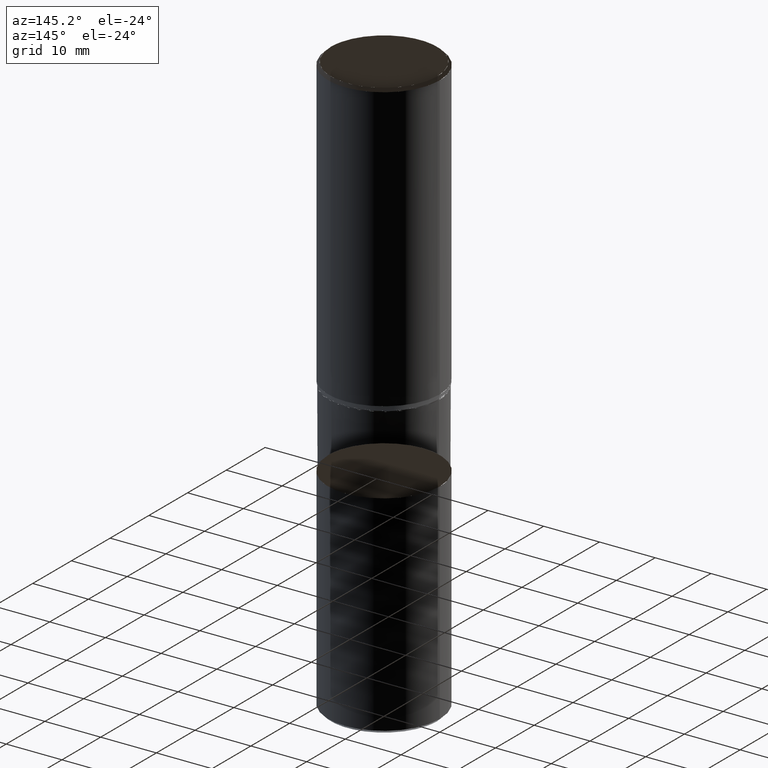
[diagram: clean part render]
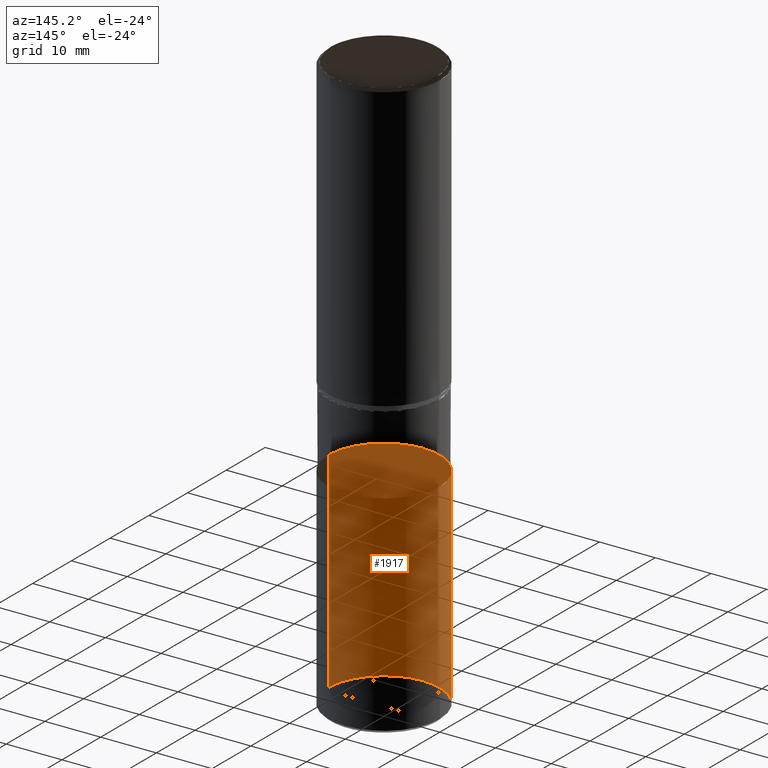
[diagram: same view with one face highlighted and labeled with its STEP entity id]
A machine part, auxiliary view. The second image highlights one B-rep face of the part: STEP entity #1917.
In plain terms, the highlighted face is a freeform B-spline surface patch.
Its self-contained STEP definition (entity closure, byte-faithful):
#1778=CARTESIAN_POINT('',(10.0,0.0,-52.350692272943));
#1779=CARTESIAN_POINT('',(10.0,10.0,-52.350692272943));
#1780=CARTESIAN_POINT('',(0.0,10.0,-52.350692272943));
#1781=CARTESIAN_POINT('',(-10.0,10.0,-52.350692272943));
#1782=CARTESIAN_POINT('',(-10.0,0.0,-52.350692272943));
#1783=CARTESIAN_POINT('',(10.0,0.0,-14.850692272943));
#1784=CARTESIAN_POINT('',(10.0,10.0,-14.850692272943));
#1785=CARTESIAN_POINT('',(0.0,10.0,-14.850692272943));
#1786=CARTESIAN_POINT('',(-10.0,10.0,-14.850692272943));
#1787=CARTESIAN_POINT('',(-10.0,0.0,-14.850692272943));
#1898=(
BOUNDED_SURFACE()
B_SPLINE_SURFACE(1,2,(
(#1778,#1779,#1780,#1781,#1782),
(#1783,#1784,#1785,#1786,#1787)
), .UNSPECIFIED.,.F.,.F.,.F.)
B_SPLINE_SURFACE_WITH_KNOTS((2,2),(3,2,3),(
0.0,1.0),(
0.0,0.5,1.0), .UNSPECIFIED.)
GEOMETRIC_REPRESENTATION_ITEM()
RATIONAL_B_SPLINE_SURFACE(((1.0,0.707106781187,1.0,0.707106781187,1.0),
(1.0,0.707106781187,1.0,0.707106781187,1.0)
))
REPRESENTATION_ITEM('')
SURFACE()
);
#1899=(
BOUNDED_CURVE()
B_SPLINE_CURVE(2,(#1782,#1781,#1780,#1779,#1778),.UNSPECIFIED.,.F.,.F.)
B_SPLINE_CURVE_WITH_KNOTS((3,2,3),
(0.0,0.5,1.0),.UNSPECIFIED.)
CURVE()
GEOMETRIC_REPRESENTATION_ITEM()
RATIONAL_B_SPLINE_CURVE((1.0,0.707106781187,1.0,0.707106781187,1.0))
REPRESENTATION_ITEM('')
);
#1900=(
BOUNDED_CURVE()
B_SPLINE_CURVE(1,(#1778,#1783),.UNSPECIFIED.,.F.,.F.)
B_SPLINE_CURVE_WITH_KNOTS((2,2),
(0.0,1.0),.UNSPECIFIED.)
CURVE()
GEOMETRIC_REPRESENTATION_ITEM()
RATIONAL_B_SPLINE_CURVE((1.0,1.0))
REPRESENTATION_ITEM('')
);
#1901=(
BOUNDED_CURVE()
B_SPLINE_CURVE(2,(#1783,#1784,#1785,#1786,#1787),.UNSPECIFIED.,.F.,.F.)
B_SPLINE_CURVE_WITH_KNOTS((3,2,3),
(0.0,0.5,1.0),.UNSPECIFIED.)
CURVE()
GEOMETRIC_REPRESENTATION_ITEM()
RATIONAL_B_SPLINE_CURVE((1.0,0.707106781187,1.0,0.707106781187,1.0))
REPRESENTATION_ITEM('')
);
#1902=(
BOUNDED_CURVE()
B_SPLINE_CURVE(1,(#1787,#1782),.UNSPECIFIED.,.F.,.F.)
B_SPLINE_CURVE_WITH_KNOTS((2,2),
(0.0,1.0),.UNSPECIFIED.)
CURVE()
GEOMETRIC_REPRESENTATION_ITEM()
RATIONAL_B_SPLINE_CURVE((1.0,1.0))
REPRESENTATION_ITEM('')
);
#1903=VERTEX_POINT('',#1778);
#1904=VERTEX_POINT('',#1782);
#1905=VERTEX_POINT('',#1783);
#1906=VERTEX_POINT('',#1787);
#1907=EDGE_CURVE('',#1904,#1903,#1899,.T.);
#1908=EDGE_CURVE('',#1903,#1905,#1900,.T.);
#1909=EDGE_CURVE('',#1905,#1906,#1901,.T.);
#1910=EDGE_CURVE('',#1906,#1904,#1902,.T.);
#1911=ORIENTED_EDGE('',*,*,#1907,.T.);
#1912=ORIENTED_EDGE('',*,*,#1908,.T.);
#1913=ORIENTED_EDGE('',*,*,#1909,.T.);
#1914=ORIENTED_EDGE('',*,*,#1910,.T.);
#1915=EDGE_LOOP('',(#1911,#1912,#1913,#1914));
#1916=FACE_OUTER_BOUND('',#1915,.T.);
#1917=ADVANCED_FACE('',(#1916),#1898,.T.);